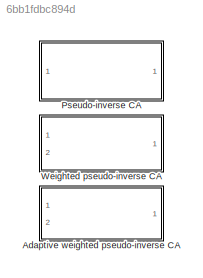
MODEL slx_6bb1fdbc894d
KIND library
CONFIG AbsTol = auto
CONFIG EnableMultiTasking = off
CONFIG FixedStep = auto
CONFIG MaxStep = auto
CONFIG MinStep = auto
CONFIG RelTol = 1e-3
CONFIG SampleTimeConstraint = Unconstrained
CONFIG Solver = VariableStepAuto
CONFIG SolverName = VariableStepAuto
CONFIG StartTime = 0.0
CONFIG StopTime = 10.0
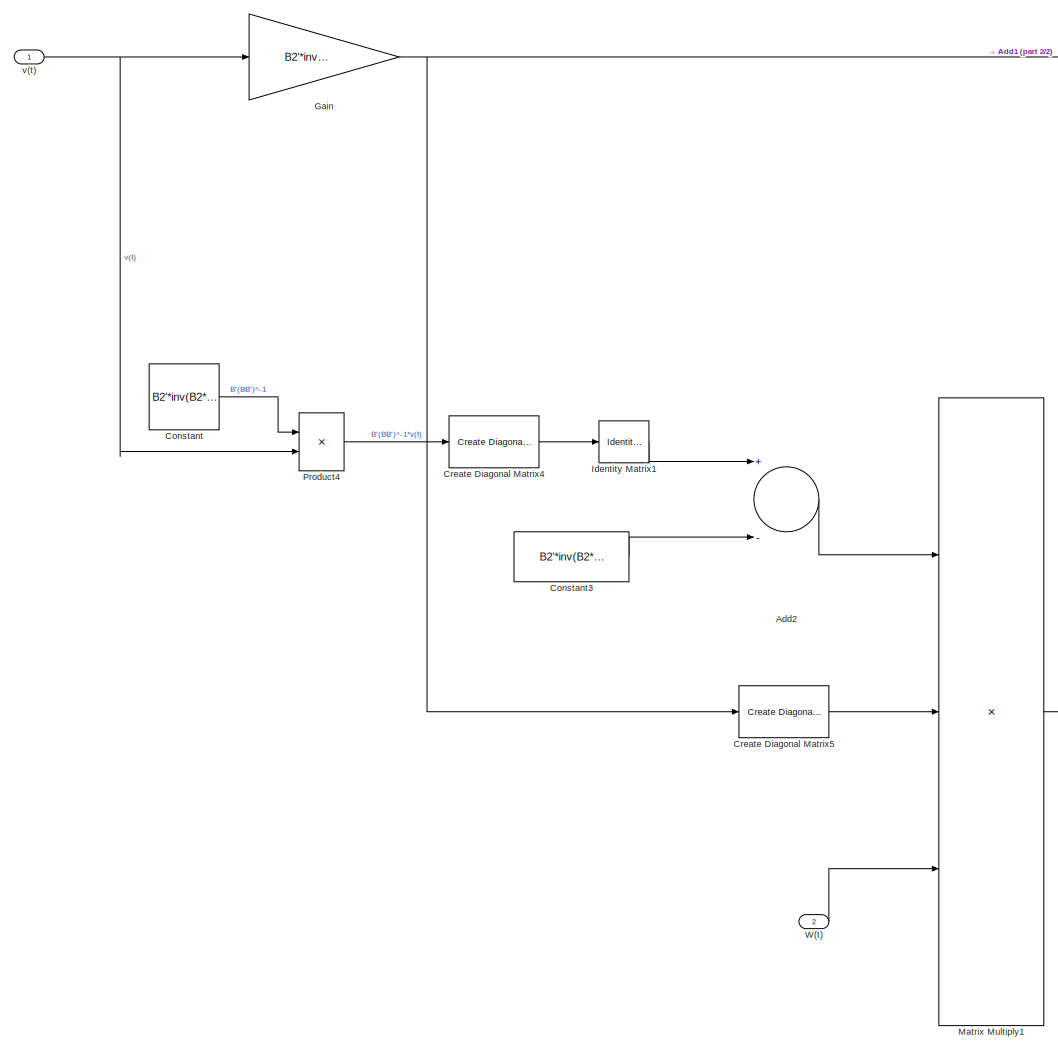
[diagram: Adaptive weighted pseudo-inverse CA - part 1/2, left side, full height]
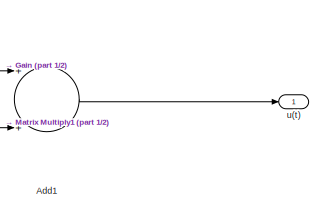
[diagram: Adaptive weighted pseudo-inverse CA - part 2/2, middle right region]
BLOCK [SubSystem] Adaptive weighted pseudo-inverse CA
  Ports = [2, 1]
  RequestExecContextInheritance = off
  Variant = off
BLOCK [Sum] Adaptive weighted pseudo-inverse CA/Add1
  InputSameDT = off
  OutDataTypeStr = Inherit: Inherit via internal rule
  Ports = [2, 1]
  SaturateOnIntegerOverflow = off
BLOCK [Sum] Adaptive weighted pseudo-inverse CA/Add2
  InputSameDT = off
  Inputs = +-
  OutDataTypeStr = Inherit: Inherit via internal rule
  Ports = [2, 1]
  SaturateOnIntegerOverflow = off
BLOCK [Constant] Adaptive weighted pseudo-inverse CA/Constant
  Value = B2'*inv(B2*B2')
BLOCK [Constant] Adaptive weighted pseudo-inverse CA/Constant3
  Value = B2'*inv(B2*B2')*B2
BLOCK [Reference] Adaptive weighted pseudo-inverse CA/Create Diagonal Matrix4  REF=dspmtrx3/Create Diagonal
Matrix
  Ports = [1, 1]
  SourceBlock = dspmtrx3/Create Diagonal\nMatrix
  SourceProductBaseCode = DS
  SourceProductName = DSP System Toolbox
  SourceType = Create Diagonal Matrix
BLOCK [Reference] Adaptive weighted pseudo-inverse CA/Create Diagonal Matrix5  REF=dspmtrx3/Create Diagonal
Matrix
  Ports = [1, 1]
  SourceBlock = dspmtrx3/Create Diagonal\nMatrix
  SourceProductBaseCode = DS
  SourceProductName = DSP System Toolbox
  SourceType = Create Diagonal Matrix
BLOCK [Gain] Adaptive weighted pseudo-inverse CA/Gain
  Gain = B2'*inv(B2*B2')
  Multiplication = Matrix(K*u) (u vector)
  OutDataTypeStr = Inherit: Inherit via internal rule
  ParamDataTypeStr = Inherit: Inherit via internal rule
  SaturateOnIntegerOverflow = off
BLOCK [Reference] Adaptive weighted pseudo-inverse CA/Identity Matrix1  REF=dspmtrx3/Identity Matrix
  Ports = [1, 1]
  SourceBlock = dspmtrx3/Identity Matrix
  SourceProductBaseCode = DS
  SourceProductName = DSP System Toolbox
  SourceType = Identity Matrix
BLOCK [Product] Adaptive weighted pseudo-inverse CA/Matrix Multiply1
  InputSameDT = off
  Inputs = 3
  Multiplication = Matrix(*)
  OutDataTypeStr = Inherit: Inherit via internal rule
  Ports = [3, 1]
  RndMeth = Floor
  SaturateOnIntegerOverflow = off
BLOCK [Product] Adaptive weighted pseudo-inverse CA/Product4
  InputSameDT = off
  Multiplication = Matrix(*)
  OutDataTypeStr = Inherit: Inherit via internal rule
  Ports = [2, 1]
  RndMeth = Floor
  SaturateOnIntegerOverflow = off
BLOCK [Inport] Adaptive weighted pseudo-inverse CA/W(t)
  IconDisplay = Port number
  Port = 2
BLOCK [Outport] Adaptive weighted pseudo-inverse CA/u(t)
  IconDisplay = Port number
BLOCK [Inport] Adaptive weighted pseudo-inverse CA/v(t)
  IconDisplay = Port number
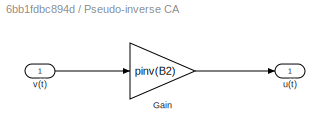
BLOCK [SubSystem] Pseudo-inverse CA
  Ports = [1, 1]
  RequestExecContextInheritance = off
  Variant = off
BLOCK [Gain] Pseudo-inverse CA/Gain
  Gain = pinv(B2)
  OutDataTypeStr = Inherit: Inherit via internal rule
  ParamDataTypeStr = Inherit: Inherit via internal rule
  SaturateOnIntegerOverflow = off
BLOCK [Outport] Pseudo-inverse CA/u(t)
  IconDisplay = Port number
BLOCK [Inport] Pseudo-inverse CA/v(t)
  IconDisplay = Port number
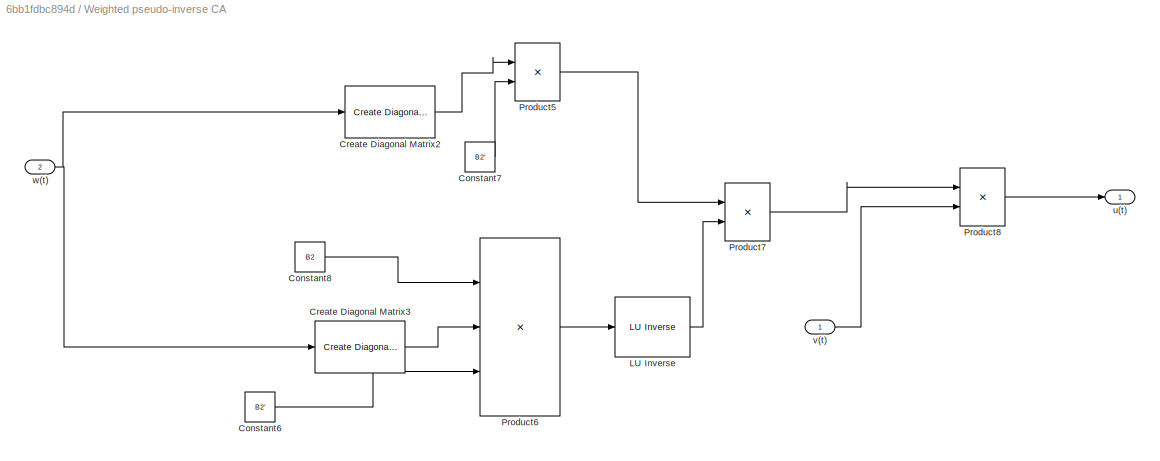
BLOCK [SubSystem] Weighted pseudo-inverse CA
  Ports = [2, 1]
  RequestExecContextInheritance = off
  Variant = off
BLOCK [Reference] Weighted pseudo-inverse CA/ LU Inverse  REF=dspinverses/ LU Inverse
  Ports = [1, 1]
  SourceBlock = dspinverses/ LU Inverse
  SourceProductBaseCode = DS
  SourceProductName = DSP System Toolbox
  SourceType = LU Inverse
BLOCK [Constant] Weighted pseudo-inverse CA/Constant6
  Value = B2'
BLOCK [Constant] Weighted pseudo-inverse CA/Constant7
  Value = B2'
BLOCK [Constant] Weighted pseudo-inverse CA/Constant8
  Value = B2
BLOCK [Reference] Weighted pseudo-inverse CA/Create Diagonal Matrix2  REF=dspmtrx3/Create Diagonal
Matrix
  Ports = [1, 1]
  SourceBlock = dspmtrx3/Create Diagonal\nMatrix
  SourceProductBaseCode = DS
  SourceProductName = DSP System Toolbox
  SourceType = Create Diagonal Matrix
BLOCK [Reference] Weighted pseudo-inverse CA/Create Diagonal Matrix3  REF=dspmtrx3/Create Diagonal
Matrix
  Ports = [1, 1]
  SourceBlock = dspmtrx3/Create Diagonal\nMatrix
  SourceProductBaseCode = DS
  SourceProductName = DSP System Toolbox
  SourceType = Create Diagonal Matrix
BLOCK [Product] Weighted pseudo-inverse CA/Product5
  InputSameDT = off
  Multiplication = Matrix(*)
  OutDataTypeStr = Inherit: Inherit via internal rule
  Ports = [2, 1]
  RndMeth = Floor
  SaturateOnIntegerOverflow = off
BLOCK [Product] Weighted pseudo-inverse CA/Product6
  InputSameDT = off
  Inputs = 3
  Multiplication = Matrix(*)
  OutDataTypeStr = Inherit: Inherit via internal rule
  Ports = [3, 1]
  RndMeth = Floor
  SaturateOnIntegerOverflow = off
BLOCK [Product] Weighted pseudo-inverse CA/Product7
  InputSameDT = off
  Multiplication = Matrix(*)
  OutDataTypeStr = Inherit: Inherit via internal rule
  Ports = [2, 1]
  RndMeth = Floor
  SaturateOnIntegerOverflow = off
BLOCK [Product] Weighted pseudo-inverse CA/Product8
  InputSameDT = off
  Multiplication = Matrix(*)
  OutDataTypeStr = Inherit: Inherit via internal rule
  Ports = [2, 1]
  RndMeth = Floor
  SaturateOnIntegerOverflow = off
BLOCK [Outport] Weighted pseudo-inverse CA/u(t)
  IconDisplay = Port number
BLOCK [Inport] Weighted pseudo-inverse CA/v(t)
  IconDisplay = Port number
BLOCK [Inport] Weighted pseudo-inverse CA/w(t)
  IconDisplay = Port number
  Port = 2
LINE Adaptive weighted pseudo-inverse CA/Add1:1 -> Adaptive weighted pseudo-inverse CA/u(t):1
LINE Adaptive weighted pseudo-inverse CA/Add2:1 -> Adaptive weighted pseudo-inverse CA/Matrix Multiply1:1
LINE Adaptive weighted pseudo-inverse CA/Constant3:1 -> Adaptive weighted pseudo-inverse CA/Add2:2
LINE Adaptive weighted pseudo-inverse CA/Constant:1 -> Adaptive weighted pseudo-inverse CA/Product4:1
LINE Adaptive weighted pseudo-inverse CA/Create Diagonal Matrix4:1 -> Adaptive weighted pseudo-inverse CA/Identity Matrix1:1
LINE Adaptive weighted pseudo-inverse CA/Create Diagonal Matrix5:1 -> Adaptive weighted pseudo-inverse CA/Matrix Multiply1:2
NET Adaptive weighted pseudo-inverse CA/Gain:1 -> Adaptive weighted pseudo-inverse CA/Add1:1, Adaptive weighted pseudo-inverse CA/Create Diagonal Matrix5:1
LINE Adaptive weighted pseudo-inverse CA/Identity Matrix1:1 -> Adaptive weighted pseudo-inverse CA/Add2:1
LINE Adaptive weighted pseudo-inverse CA/Matrix Multiply1:1 -> Adaptive weighted pseudo-inverse CA/Add1:2
LINE Adaptive weighted pseudo-inverse CA/Product4:1 -> Adaptive weighted pseudo-inverse CA/Create Diagonal Matrix4:1
LINE Adaptive weighted pseudo-inverse CA/W(t):1 -> Adaptive weighted pseudo-inverse CA/Matrix Multiply1:3
NET Adaptive weighted pseudo-inverse CA/v(t):1 -> Adaptive weighted pseudo-inverse CA/Gain:1, Adaptive weighted pseudo-inverse CA/Product4:2
LINE Pseudo-inverse CA/Gain:1 -> Pseudo-inverse CA/u(t):1
LINE Pseudo-inverse CA/v(t):1 -> Pseudo-inverse CA/Gain:1
LINE Weighted pseudo-inverse CA/ LU Inverse:1 -> Weighted pseudo-inverse CA/Product7:2
LINE Weighted pseudo-inverse CA/Constant6:1 -> Weighted pseudo-inverse CA/Product6:3
LINE Weighted pseudo-inverse CA/Constant7:1 -> Weighted pseudo-inverse CA/Product5:2
LINE Weighted pseudo-inverse CA/Constant8:1 -> Weighted pseudo-inverse CA/Product6:1
LINE Weighted pseudo-inverse CA/Create Diagonal Matrix2:1 -> Weighted pseudo-inverse CA/Product5:1
LINE Weighted pseudo-inverse CA/Create Diagonal Matrix3:1 -> Weighted pseudo-inverse CA/Product6:2
LINE Weighted pseudo-inverse CA/Product5:1 -> Weighted pseudo-inverse CA/Product7:1
LINE Weighted pseudo-inverse CA/Product6:1 -> Weighted pseudo-inverse CA/ LU Inverse:1
LINE Weighted pseudo-inverse CA/Product7:1 -> Weighted pseudo-inverse CA/Product8:1
LINE Weighted pseudo-inverse CA/Product8:1 -> Weighted pseudo-inverse CA/u(t):1
LINE Weighted pseudo-inverse CA/v(t):1 -> Weighted pseudo-inverse CA/Product8:2
NET Weighted pseudo-inverse CA/w(t):1 -> Weighted pseudo-inverse CA/Create Diagonal Matrix2:1, Weighted pseudo-inverse CA/Create Diagonal Matrix3:1
note: NET lines group one-source signal fan-out (src -> all destinations, sorted); 1:1 wires keep LINE
